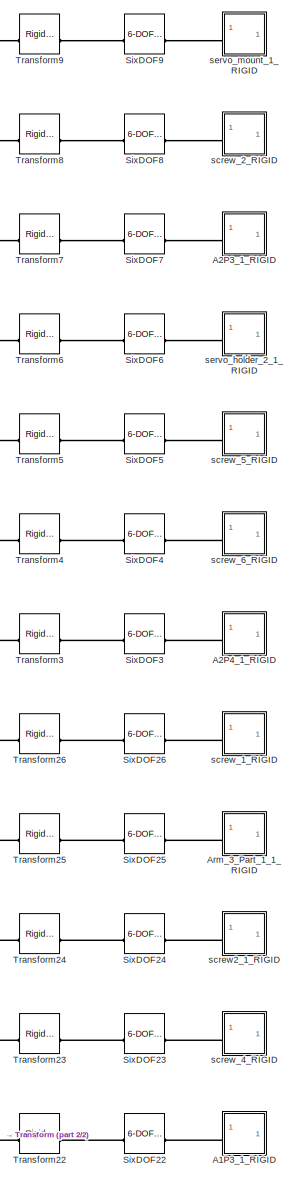
[diagram: root canvas - part 1/2, top right region]
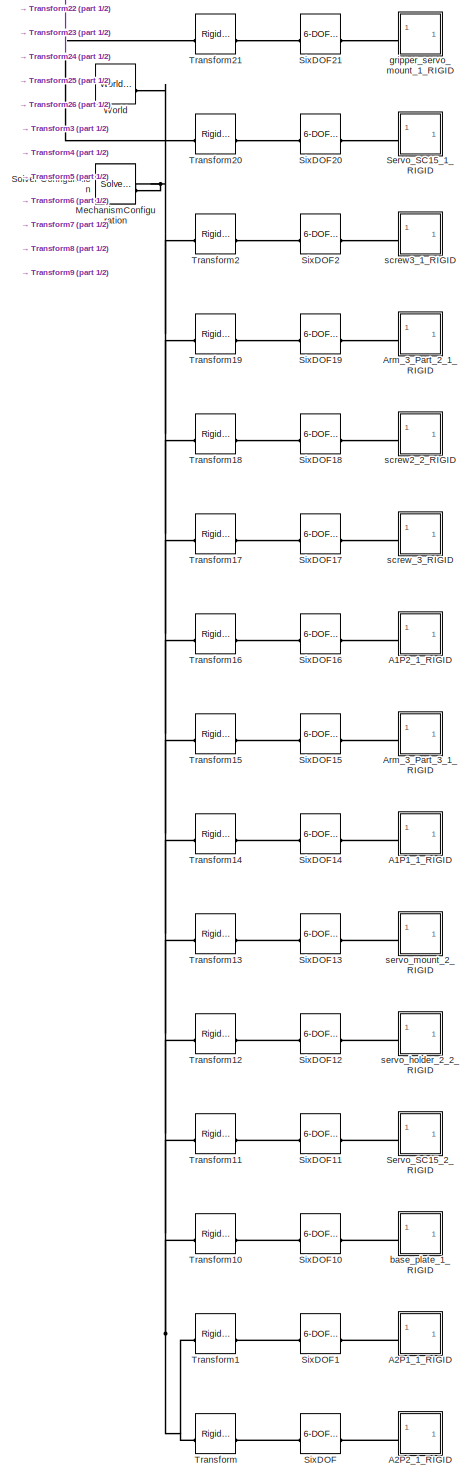
[diagram: root canvas - part 2/2, full width, bottom band]
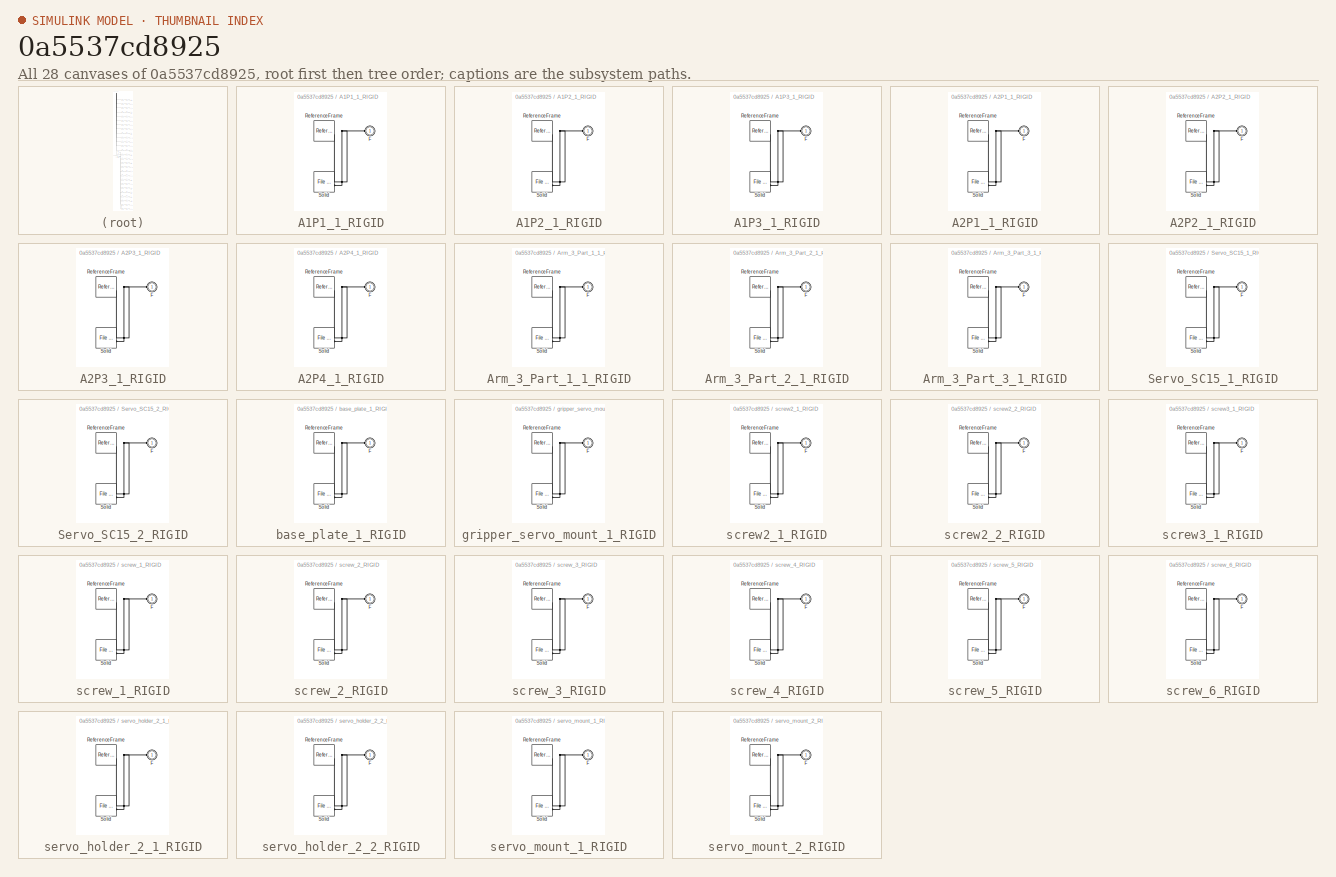
[diagram: thumbnail index - all 28 canvases of the model, root first then tree order]
MODEL slx_0a5537cd8925
KIND model
CONFIG AbsTol = auto
CONFIG EnableMultiTasking = off
CONFIG FixedStep = auto
CONFIG MaxStep = auto
CONFIG MinStep = auto
CONFIG RelTol = 1e-3
CONFIG SampleTimeConstraint = Unconstrained
CONFIG SolverName = VariableStepAuto
CONFIG StartTime = 0.0
CONFIG StopTime = 10.0
WORKSPACE source: external: MATLAB File  (data not in archive)
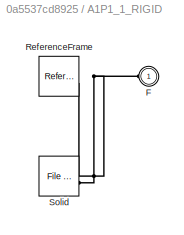
BLOCK [SubSystem] A1P1_1_RIGID
BLOCK [PMIOPort] A1P1_1_RIGID/F
  Side = Left
BLOCK [Reference] A1P1_1_RIGID/ReferenceFrame  REF=sm_lib/Frames and
Transforms/Reference
Frame
  SourceBlock = sm_lib/Frames and\nTransforms/Reference\nFrame
  SourceType = Reference\nFrame
BLOCK [Reference] A1P1_1_RIGID/Solid  REF=sm_lib/Body Elements/File Solid
  SourceBlock = sm_lib/Body Elements/File Solid
  SourceType = File Solid
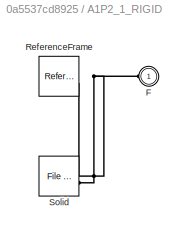
BLOCK [SubSystem] A1P2_1_RIGID
BLOCK [PMIOPort] A1P2_1_RIGID/F
  Side = Left
BLOCK [Reference] A1P2_1_RIGID/ReferenceFrame  REF=sm_lib/Frames and
Transforms/Reference
Frame
  SourceBlock = sm_lib/Frames and\nTransforms/Reference\nFrame
  SourceType = Reference\nFrame
BLOCK [Reference] A1P2_1_RIGID/Solid  REF=sm_lib/Body Elements/File Solid
  SourceBlock = sm_lib/Body Elements/File Solid
  SourceType = File Solid
BLOCK [SubSystem] A1P3_1_RIGID
BLOCK [PMIOPort] A1P3_1_RIGID/F
  Side = Left
BLOCK [Reference] A1P3_1_RIGID/ReferenceFrame  REF=sm_lib/Frames and
Transforms/Reference
Frame
  SourceBlock = sm_lib/Frames and\nTransforms/Reference\nFrame
  SourceType = Reference\nFrame
BLOCK [Reference] A1P3_1_RIGID/Solid  REF=sm_lib/Body Elements/File Solid
  SourceBlock = sm_lib/Body Elements/File Solid
  SourceType = File Solid
BLOCK [SubSystem] A2P1_1_RIGID
BLOCK [PMIOPort] A2P1_1_RIGID/F
  Side = Left
BLOCK [Reference] A2P1_1_RIGID/ReferenceFrame  REF=sm_lib/Frames and
Transforms/Reference
Frame
  SourceBlock = sm_lib/Frames and\nTransforms/Reference\nFrame
  SourceType = Reference\nFrame
BLOCK [Reference] A2P1_1_RIGID/Solid  REF=sm_lib/Body Elements/File Solid
  SourceBlock = sm_lib/Body Elements/File Solid
  SourceType = File Solid
BLOCK [SubSystem] A2P2_1_RIGID
BLOCK [PMIOPort] A2P2_1_RIGID/F
  Side = Left
BLOCK [Reference] A2P2_1_RIGID/ReferenceFrame  REF=sm_lib/Frames and
Transforms/Reference
Frame
  SourceBlock = sm_lib/Frames and\nTransforms/Reference\nFrame
  SourceType = Reference\nFrame
BLOCK [Reference] A2P2_1_RIGID/Solid  REF=sm_lib/Body Elements/File Solid
  SourceBlock = sm_lib/Body Elements/File Solid
  SourceType = File Solid
BLOCK [SubSystem] A2P3_1_RIGID
BLOCK [PMIOPort] A2P3_1_RIGID/F
  Side = Left
BLOCK [Reference] A2P3_1_RIGID/ReferenceFrame  REF=sm_lib/Frames and
Transforms/Reference
Frame
  SourceBlock = sm_lib/Frames and\nTransforms/Reference\nFrame
  SourceType = Reference\nFrame
BLOCK [Reference] A2P3_1_RIGID/Solid  REF=sm_lib/Body Elements/File Solid
  SourceBlock = sm_lib/Body Elements/File Solid
  SourceType = File Solid
BLOCK [SubSystem] A2P4_1_RIGID
BLOCK [PMIOPort] A2P4_1_RIGID/F
  Side = Left
BLOCK [Reference] A2P4_1_RIGID/ReferenceFrame  REF=sm_lib/Frames and
Transforms/Reference
Frame
  SourceBlock = sm_lib/Frames and\nTransforms/Reference\nFrame
  SourceType = Reference\nFrame
BLOCK [Reference] A2P4_1_RIGID/Solid  REF=sm_lib/Body Elements/File Solid
  SourceBlock = sm_lib/Body Elements/File Solid
  SourceType = File Solid
BLOCK [SubSystem] Arm_3_Part_1_1_RIGID
BLOCK [PMIOPort] Arm_3_Part_1_1_RIGID/F
  Side = Left
BLOCK [Reference] Arm_3_Part_1_1_RIGID/ReferenceFrame  REF=sm_lib/Frames and
Transforms/Reference
Frame
  SourceBlock = sm_lib/Frames and\nTransforms/Reference\nFrame
  SourceType = Reference\nFrame
BLOCK [Reference] Arm_3_Part_1_1_RIGID/Solid  REF=sm_lib/Body Elements/File Solid
  SourceBlock = sm_lib/Body Elements/File Solid
  SourceType = File Solid
BLOCK [SubSystem] Arm_3_Part_2_1_RIGID
BLOCK [PMIOPort] Arm_3_Part_2_1_RIGID/F
  Side = Left
BLOCK [Reference] Arm_3_Part_2_1_RIGID/ReferenceFrame  REF=sm_lib/Frames and
Transforms/Reference
Frame
  SourceBlock = sm_lib/Frames and\nTransforms/Reference\nFrame
  SourceType = Reference\nFrame
BLOCK [Reference] Arm_3_Part_2_1_RIGID/Solid  REF=sm_lib/Body Elements/File Solid
  SourceBlock = sm_lib/Body Elements/File Solid
  SourceType = File Solid
BLOCK [SubSystem] Arm_3_Part_3_1_RIGID
BLOCK [PMIOPort] Arm_3_Part_3_1_RIGID/F
  Side = Left
BLOCK [Reference] Arm_3_Part_3_1_RIGID/ReferenceFrame  REF=sm_lib/Frames and
Transforms/Reference
Frame
  SourceBlock = sm_lib/Frames and\nTransforms/Reference\nFrame
  SourceType = Reference\nFrame
BLOCK [Reference] Arm_3_Part_3_1_RIGID/Solid  REF=sm_lib/Body Elements/File Solid
  SourceBlock = sm_lib/Body Elements/File Solid
  SourceType = File Solid
BLOCK [Reference] MechanismConfiguration  REF=sm_lib/Utilities/Mechanism
Configuration
  SourceBlock = sm_lib/Utilities/Mechanism\nConfiguration
  SourceType = Mechanism\nConfiguration
BLOCK [SubSystem] Servo_SC15_1_RIGID
BLOCK [PMIOPort] Servo_SC15_1_RIGID/F
  Side = Left
BLOCK [Reference] Servo_SC15_1_RIGID/ReferenceFrame  REF=sm_lib/Frames and
Transforms/Reference
Frame
  SourceBlock = sm_lib/Frames and\nTransforms/Reference\nFrame
  SourceType = Reference\nFrame
BLOCK [Reference] Servo_SC15_1_RIGID/Solid  REF=sm_lib/Body Elements/File Solid
  SourceBlock = sm_lib/Body Elements/File Solid
  SourceType = File Solid
BLOCK [SubSystem] Servo_SC15_2_RIGID
BLOCK [PMIOPort] Servo_SC15_2_RIGID/F
  Side = Left
BLOCK [Reference] Servo_SC15_2_RIGID/ReferenceFrame  REF=sm_lib/Frames and
Transforms/Reference
Frame
  SourceBlock = sm_lib/Frames and\nTransforms/Reference\nFrame
  SourceType = Reference\nFrame
BLOCK [Reference] Servo_SC15_2_RIGID/Solid  REF=sm_lib/Body Elements/File Solid
  SourceBlock = sm_lib/Body Elements/File Solid
  SourceType = File Solid
BLOCK [Reference] SixDOF  REF=sm_lib/Joints/6-DOF Joint
  SourceBlock = sm_lib/Joints/6-DOF Joint
  SourceType = 6-DOF Joint
BLOCK [Reference] SixDOF1  REF=sm_lib/Joints/6-DOF Joint
  SourceBlock = sm_lib/Joints/6-DOF Joint
  SourceType = 6-DOF Joint
BLOCK [Reference] SixDOF10  REF=sm_lib/Joints/6-DOF Joint
  SourceBlock = sm_lib/Joints/6-DOF Joint
  SourceType = 6-DOF Joint
BLOCK [Reference] SixDOF11  REF=sm_lib/Joints/6-DOF Joint
  SourceBlock = sm_lib/Joints/6-DOF Joint
  SourceType = 6-DOF Joint
BLOCK [Reference] SixDOF12  REF=sm_lib/Joints/6-DOF Joint
  SourceBlock = sm_lib/Joints/6-DOF Joint
  SourceType = 6-DOF Joint
BLOCK [Reference] SixDOF13  REF=sm_lib/Joints/6-DOF Joint
  SourceBlock = sm_lib/Joints/6-DOF Joint
  SourceType = 6-DOF Joint
BLOCK [Reference] SixDOF14  REF=sm_lib/Joints/6-DOF Joint
  SourceBlock = sm_lib/Joints/6-DOF Joint
  SourceType = 6-DOF Joint
BLOCK [Reference] SixDOF15  REF=sm_lib/Joints/6-DOF Joint
  SourceBlock = sm_lib/Joints/6-DOF Joint
  SourceType = 6-DOF Joint
BLOCK [Reference] SixDOF16  REF=sm_lib/Joints/6-DOF Joint
  SourceBlock = sm_lib/Joints/6-DOF Joint
  SourceType = 6-DOF Joint
BLOCK [Reference] SixDOF17  REF=sm_lib/Joints/6-DOF Joint
  SourceBlock = sm_lib/Joints/6-DOF Joint
  SourceType = 6-DOF Joint
BLOCK [Reference] SixDOF18  REF=sm_lib/Joints/6-DOF Joint
  SourceBlock = sm_lib/Joints/6-DOF Joint
  SourceType = 6-DOF Joint
BLOCK [Reference] SixDOF19  REF=sm_lib/Joints/6-DOF Joint
  SourceBlock = sm_lib/Joints/6-DOF Joint
  SourceType = 6-DOF Joint
BLOCK [Reference] SixDOF2  REF=sm_lib/Joints/6-DOF Joint
  SourceBlock = sm_lib/Joints/6-DOF Joint
  SourceType = 6-DOF Joint
BLOCK [Reference] SixDOF20  REF=sm_lib/Joints/6-DOF Joint
  SourceBlock = sm_lib/Joints/6-DOF Joint
  SourceType = 6-DOF Joint
BLOCK [Reference] SixDOF21  REF=sm_lib/Joints/6-DOF Joint
  SourceBlock = sm_lib/Joints/6-DOF Joint
  SourceType = 6-DOF Joint
BLOCK [Reference] SixDOF22  REF=sm_lib/Joints/6-DOF Joint
  SourceBlock = sm_lib/Joints/6-DOF Joint
  SourceType = 6-DOF Joint
BLOCK [Reference] SixDOF23  REF=sm_lib/Joints/6-DOF Joint
  SourceBlock = sm_lib/Joints/6-DOF Joint
  SourceType = 6-DOF Joint
BLOCK [Reference] SixDOF24  REF=sm_lib/Joints/6-DOF Joint
  SourceBlock = sm_lib/Joints/6-DOF Joint
  SourceType = 6-DOF Joint
BLOCK [Reference] SixDOF25  REF=sm_lib/Joints/6-DOF Joint
  SourceBlock = sm_lib/Joints/6-DOF Joint
  SourceType = 6-DOF Joint
BLOCK [Reference] SixDOF26  REF=sm_lib/Joints/6-DOF Joint
  SourceBlock = sm_lib/Joints/6-DOF Joint
  SourceType = 6-DOF Joint
BLOCK [Reference] SixDOF3  REF=sm_lib/Joints/6-DOF Joint
  SourceBlock = sm_lib/Joints/6-DOF Joint
  SourceType = 6-DOF Joint
BLOCK [Reference] SixDOF4  REF=sm_lib/Joints/6-DOF Joint
  SourceBlock = sm_lib/Joints/6-DOF Joint
  SourceType = 6-DOF Joint
BLOCK [Reference] SixDOF5  REF=sm_lib/Joints/6-DOF Joint
  SourceBlock = sm_lib/Joints/6-DOF Joint
  SourceType = 6-DOF Joint
BLOCK [Reference] SixDOF6  REF=sm_lib/Joints/6-DOF Joint
  SourceBlock = sm_lib/Joints/6-DOF Joint
  SourceType = 6-DOF Joint
BLOCK [Reference] SixDOF7  REF=sm_lib/Joints/6-DOF Joint
  SourceBlock = sm_lib/Joints/6-DOF Joint
  SourceType = 6-DOF Joint
BLOCK [Reference] SixDOF8  REF=sm_lib/Joints/6-DOF Joint
  SourceBlock = sm_lib/Joints/6-DOF Joint
  SourceType = 6-DOF Joint
BLOCK [Reference] SixDOF9  REF=sm_lib/Joints/6-DOF Joint
  SourceBlock = sm_lib/Joints/6-DOF Joint
  SourceType = 6-DOF Joint
BLOCK [Reference] Solver Configuration  REF=nesl_utility/Solver
Configuration
  SourceBlock = nesl_utility/Solver\nConfiguration
  SourceType = Solver\nConfiguration
BLOCK [Reference] Transform  REF=sm_lib/Frames and
Transforms/Rigid
Transform
  SourceBlock = sm_lib/Frames and\nTransforms/Rigid\nTransform
  SourceType = Rigid\nTransform
BLOCK [Reference] Transform1  REF=sm_lib/Frames and
Transforms/Rigid
Transform
  SourceBlock = sm_lib/Frames and\nTransforms/Rigid\nTransform
  SourceType = Rigid\nTransform
BLOCK [Reference] Transform10  REF=sm_lib/Frames and
Transforms/Rigid
Transform
  SourceBlock = sm_lib/Frames and\nTransforms/Rigid\nTransform
  SourceType = Rigid\nTransform
BLOCK [Reference] Transform11  REF=sm_lib/Frames and
Transforms/Rigid
Transform
  SourceBlock = sm_lib/Frames and\nTransforms/Rigid\nTransform
  SourceType = Rigid\nTransform
BLOCK [Reference] Transform12  REF=sm_lib/Frames and
Transforms/Rigid
Transform
  SourceBlock = sm_lib/Frames and\nTransforms/Rigid\nTransform
  SourceType = Rigid\nTransform
BLOCK [Reference] Transform13  REF=sm_lib/Frames and
Transforms/Rigid
Transform
  SourceBlock = sm_lib/Frames and\nTransforms/Rigid\nTransform
  SourceType = Rigid\nTransform
BLOCK [Reference] Transform14  REF=sm_lib/Frames and
Transforms/Rigid
Transform
  SourceBlock = sm_lib/Frames and\nTransforms/Rigid\nTransform
  SourceType = Rigid\nTransform
BLOCK [Reference] Transform15  REF=sm_lib/Frames and
Transforms/Rigid
Transform
  SourceBlock = sm_lib/Frames and\nTransforms/Rigid\nTransform
  SourceType = Rigid\nTransform
BLOCK [Reference] Transform16  REF=sm_lib/Frames and
Transforms/Rigid
Transform
  SourceBlock = sm_lib/Frames and\nTransforms/Rigid\nTransform
  SourceType = Rigid\nTransform
BLOCK [Reference] Transform17  REF=sm_lib/Frames and
Transforms/Rigid
Transform
  SourceBlock = sm_lib/Frames and\nTransforms/Rigid\nTransform
  SourceType = Rigid\nTransform
BLOCK [Reference] Transform18  REF=sm_lib/Frames and
Transforms/Rigid
Transform
  SourceBlock = sm_lib/Frames and\nTransforms/Rigid\nTransform
  SourceType = Rigid\nTransform
BLOCK [Reference] Transform19  REF=sm_lib/Frames and
Transforms/Rigid
Transform
  SourceBlock = sm_lib/Frames and\nTransforms/Rigid\nTransform
  SourceType = Rigid\nTransform
BLOCK [Reference] Transform2  REF=sm_lib/Frames and
Transforms/Rigid
Transform
  SourceBlock = sm_lib/Frames and\nTransforms/Rigid\nTransform
  SourceType = Rigid\nTransform
BLOCK [Reference] Transform20  REF=sm_lib/Frames and
Transforms/Rigid
Transform
  SourceBlock = sm_lib/Frames and\nTransforms/Rigid\nTransform
  SourceType = Rigid\nTransform
BLOCK [Reference] Transform21  REF=sm_lib/Frames and
Transforms/Rigid
Transform
  SourceBlock = sm_lib/Frames and\nTransforms/Rigid\nTransform
  SourceType = Rigid\nTransform
BLOCK [Reference] Transform22  REF=sm_lib/Frames and
Transforms/Rigid
Transform
  SourceBlock = sm_lib/Frames and\nTransforms/Rigid\nTransform
  SourceType = Rigid\nTransform
BLOCK [Reference] Transform23  REF=sm_lib/Frames and
Transforms/Rigid
Transform
  SourceBlock = sm_lib/Frames and\nTransforms/Rigid\nTransform
  SourceType = Rigid\nTransform
BLOCK [Reference] Transform24  REF=sm_lib/Frames and
Transforms/Rigid
Transform
  SourceBlock = sm_lib/Frames and\nTransforms/Rigid\nTransform
  SourceType = Rigid\nTransform
BLOCK [Reference] Transform25  REF=sm_lib/Frames and
Transforms/Rigid
Transform
  SourceBlock = sm_lib/Frames and\nTransforms/Rigid\nTransform
  SourceType = Rigid\nTransform
BLOCK [Reference] Transform26  REF=sm_lib/Frames and
Transforms/Rigid
Transform
  SourceBlock = sm_lib/Frames and\nTransforms/Rigid\nTransform
  SourceType = Rigid\nTransform
BLOCK [Reference] Transform3  REF=sm_lib/Frames and
Transforms/Rigid
Transform
  SourceBlock = sm_lib/Frames and\nTransforms/Rigid\nTransform
  SourceType = Rigid\nTransform
BLOCK [Reference] Transform4  REF=sm_lib/Frames and
Transforms/Rigid
Transform
  SourceBlock = sm_lib/Frames and\nTransforms/Rigid\nTransform
  SourceType = Rigid\nTransform
BLOCK [Reference] Transform5  REF=sm_lib/Frames and
Transforms/Rigid
Transform
  SourceBlock = sm_lib/Frames and\nTransforms/Rigid\nTransform
  SourceType = Rigid\nTransform
BLOCK [Reference] Transform6  REF=sm_lib/Frames and
Transforms/Rigid
Transform
  SourceBlock = sm_lib/Frames and\nTransforms/Rigid\nTransform
  SourceType = Rigid\nTransform
BLOCK [Reference] Transform7  REF=sm_lib/Frames and
Transforms/Rigid
Transform
  SourceBlock = sm_lib/Frames and\nTransforms/Rigid\nTransform
  SourceType = Rigid\nTransform
BLOCK [Reference] Transform8  REF=sm_lib/Frames and
Transforms/Rigid
Transform
  SourceBlock = sm_lib/Frames and\nTransforms/Rigid\nTransform
  SourceType = Rigid\nTransform
BLOCK [Reference] Transform9  REF=sm_lib/Frames and
Transforms/Rigid
Transform
  SourceBlock = sm_lib/Frames and\nTransforms/Rigid\nTransform
  SourceType = Rigid\nTransform
BLOCK [Reference] World  REF=sm_lib/Frames and
Transforms/World Frame
  SourceBlock = sm_lib/Frames and\nTransforms/World Frame
  SourceType = World Frame
BLOCK [SubSystem] base_plate_1_RIGID
BLOCK [PMIOPort] base_plate_1_RIGID/F
  Side = Left
BLOCK [Reference] base_plate_1_RIGID/ReferenceFrame  REF=sm_lib/Frames and
Transforms/Reference
Frame
  SourceBlock = sm_lib/Frames and\nTransforms/Reference\nFrame
  SourceType = Reference\nFrame
BLOCK [Reference] base_plate_1_RIGID/Solid  REF=sm_lib/Body Elements/File Solid
  SourceBlock = sm_lib/Body Elements/File Solid
  SourceType = File Solid
BLOCK [SubSystem] gripper_servo_mount_1_RIGID
BLOCK [PMIOPort] gripper_servo_mount_1_RIGID/F
  Side = Left
BLOCK [Reference] gripper_servo_mount_1_RIGID/ReferenceFrame  REF=sm_lib/Frames and
Transforms/Reference
Frame
  SourceBlock = sm_lib/Frames and\nTransforms/Reference\nFrame
  SourceType = Reference\nFrame
BLOCK [Reference] gripper_servo_mount_1_RIGID/Solid  REF=sm_lib/Body Elements/File Solid
  SourceBlock = sm_lib/Body Elements/File Solid
  SourceType = File Solid
BLOCK [SubSystem] screw2_1_RIGID
BLOCK [PMIOPort] screw2_1_RIGID/F
  Side = Left
BLOCK [Reference] screw2_1_RIGID/ReferenceFrame  REF=sm_lib/Frames and
Transforms/Reference
Frame
  SourceBlock = sm_lib/Frames and\nTransforms/Reference\nFrame
  SourceType = Reference\nFrame
BLOCK [Reference] screw2_1_RIGID/Solid  REF=sm_lib/Body Elements/File Solid
  SourceBlock = sm_lib/Body Elements/File Solid
  SourceType = File Solid
BLOCK [SubSystem] screw2_2_RIGID
BLOCK [PMIOPort] screw2_2_RIGID/F
  Side = Left
BLOCK [Reference] screw2_2_RIGID/ReferenceFrame  REF=sm_lib/Frames and
Transforms/Reference
Frame
  SourceBlock = sm_lib/Frames and\nTransforms/Reference\nFrame
  SourceType = Reference\nFrame
BLOCK [Reference] screw2_2_RIGID/Solid  REF=sm_lib/Body Elements/File Solid
  SourceBlock = sm_lib/Body Elements/File Solid
  SourceType = File Solid
BLOCK [SubSystem] screw3_1_RIGID
BLOCK [PMIOPort] screw3_1_RIGID/F
  Side = Left
BLOCK [Reference] screw3_1_RIGID/ReferenceFrame  REF=sm_lib/Frames and
Transforms/Reference
Frame
  SourceBlock = sm_lib/Frames and\nTransforms/Reference\nFrame
  SourceType = Reference\nFrame
BLOCK [Reference] screw3_1_RIGID/Solid  REF=sm_lib/Body Elements/File Solid
  SourceBlock = sm_lib/Body Elements/File Solid
  SourceType = File Solid
BLOCK [SubSystem] screw_1_RIGID
BLOCK [PMIOPort] screw_1_RIGID/F
  Side = Left
BLOCK [Reference] screw_1_RIGID/ReferenceFrame  REF=sm_lib/Frames and
Transforms/Reference
Frame
  SourceBlock = sm_lib/Frames and\nTransforms/Reference\nFrame
  SourceType = Reference\nFrame
BLOCK [Reference] screw_1_RIGID/Solid  REF=sm_lib/Body Elements/File Solid
  SourceBlock = sm_lib/Body Elements/File Solid
  SourceType = File Solid
BLOCK [SubSystem] screw_2_RIGID
BLOCK [PMIOPort] screw_2_RIGID/F
  Side = Left
BLOCK [Reference] screw_2_RIGID/ReferenceFrame  REF=sm_lib/Frames and
Transforms/Reference
Frame
  SourceBlock = sm_lib/Frames and\nTransforms/Reference\nFrame
  SourceType = Reference\nFrame
BLOCK [Reference] screw_2_RIGID/Solid  REF=sm_lib/Body Elements/File Solid
  SourceBlock = sm_lib/Body Elements/File Solid
  SourceType = File Solid
BLOCK [SubSystem] screw_3_RIGID
BLOCK [PMIOPort] screw_3_RIGID/F
  Side = Left
BLOCK [Reference] screw_3_RIGID/ReferenceFrame  REF=sm_lib/Frames and
Transforms/Reference
Frame
  SourceBlock = sm_lib/Frames and\nTransforms/Reference\nFrame
  SourceType = Reference\nFrame
BLOCK [Reference] screw_3_RIGID/Solid  REF=sm_lib/Body Elements/File Solid
  SourceBlock = sm_lib/Body Elements/File Solid
  SourceType = File Solid
BLOCK [SubSystem] screw_4_RIGID
BLOCK [PMIOPort] screw_4_RIGID/F
  Side = Left
BLOCK [Reference] screw_4_RIGID/ReferenceFrame  REF=sm_lib/Frames and
Transforms/Reference
Frame
  SourceBlock = sm_lib/Frames and\nTransforms/Reference\nFrame
  SourceType = Reference\nFrame
BLOCK [Reference] screw_4_RIGID/Solid  REF=sm_lib/Body Elements/File Solid
  SourceBlock = sm_lib/Body Elements/File Solid
  SourceType = File Solid
BLOCK [SubSystem] screw_5_RIGID
BLOCK [PMIOPort] screw_5_RIGID/F
  Side = Left
BLOCK [Reference] screw_5_RIGID/ReferenceFrame  REF=sm_lib/Frames and
Transforms/Reference
Frame
  SourceBlock = sm_lib/Frames and\nTransforms/Reference\nFrame
  SourceType = Reference\nFrame
BLOCK [Reference] screw_5_RIGID/Solid  REF=sm_lib/Body Elements/File Solid
  SourceBlock = sm_lib/Body Elements/File Solid
  SourceType = File Solid
BLOCK [SubSystem] screw_6_RIGID
BLOCK [PMIOPort] screw_6_RIGID/F
  Side = Left
BLOCK [Reference] screw_6_RIGID/ReferenceFrame  REF=sm_lib/Frames and
Transforms/Reference
Frame
  SourceBlock = sm_lib/Frames and\nTransforms/Reference\nFrame
  SourceType = Reference\nFrame
BLOCK [Reference] screw_6_RIGID/Solid  REF=sm_lib/Body Elements/File Solid
  SourceBlock = sm_lib/Body Elements/File Solid
  SourceType = File Solid
BLOCK [SubSystem] servo_holder_2_1_RIGID
BLOCK [PMIOPort] servo_holder_2_1_RIGID/F
  Side = Left
BLOCK [Reference] servo_holder_2_1_RIGID/ReferenceFrame  REF=sm_lib/Frames and
Transforms/Reference
Frame
  SourceBlock = sm_lib/Frames and\nTransforms/Reference\nFrame
  SourceType = Reference\nFrame
BLOCK [Reference] servo_holder_2_1_RIGID/Solid  REF=sm_lib/Body Elements/File Solid
  SourceBlock = sm_lib/Body Elements/File Solid
  SourceType = File Solid
BLOCK [SubSystem] servo_holder_2_2_RIGID
BLOCK [PMIOPort] servo_holder_2_2_RIGID/F
  Side = Left
BLOCK [Reference] servo_holder_2_2_RIGID/ReferenceFrame  REF=sm_lib/Frames and
Transforms/Reference
Frame
  SourceBlock = sm_lib/Frames and\nTransforms/Reference\nFrame
  SourceType = Reference\nFrame
BLOCK [Reference] servo_holder_2_2_RIGID/Solid  REF=sm_lib/Body Elements/File Solid
  SourceBlock = sm_lib/Body Elements/File Solid
  SourceType = File Solid
BLOCK [SubSystem] servo_mount_1_RIGID
BLOCK [PMIOPort] servo_mount_1_RIGID/F
  Side = Left
BLOCK [Reference] servo_mount_1_RIGID/ReferenceFrame  REF=sm_lib/Frames and
Transforms/Reference
Frame
  SourceBlock = sm_lib/Frames and\nTransforms/Reference\nFrame
  SourceType = Reference\nFrame
BLOCK [Reference] servo_mount_1_RIGID/Solid  REF=sm_lib/Body Elements/File Solid
  SourceBlock = sm_lib/Body Elements/File Solid
  SourceType = File Solid
BLOCK [SubSystem] servo_mount_2_RIGID
BLOCK [PMIOPort] servo_mount_2_RIGID/F
  Side = Left
BLOCK [Reference] servo_mount_2_RIGID/ReferenceFrame  REF=sm_lib/Frames and
Transforms/Reference
Frame
  SourceBlock = sm_lib/Frames and\nTransforms/Reference\nFrame
  SourceType = Reference\nFrame
BLOCK [Reference] servo_mount_2_RIGID/Solid  REF=sm_lib/Body Elements/File Solid
  SourceBlock = sm_lib/Body Elements/File Solid
  SourceType = File Solid
PNET net1: A1P1_1_RIGID/F:RConn1 -- A1P1_1_RIGID/ReferenceFrame:RConn1 -- A1P1_1_RIGID/Solid:RConn1
PLINE A1P1_1_RIGID:LConn1 -- SixDOF14:RConn1
PNET net2: A1P2_1_RIGID/F:RConn1 -- A1P2_1_RIGID/ReferenceFrame:RConn1 -- A1P2_1_RIGID/Solid:RConn1
PLINE A1P2_1_RIGID:LConn1 -- SixDOF16:RConn1
PNET net3: A1P3_1_RIGID/F:RConn1 -- A1P3_1_RIGID/ReferenceFrame:RConn1 -- A1P3_1_RIGID/Solid:RConn1
PLINE A1P3_1_RIGID:LConn1 -- SixDOF22:RConn1
PNET net4: A2P1_1_RIGID/F:RConn1 -- A2P1_1_RIGID/ReferenceFrame:RConn1 -- A2P1_1_RIGID/Solid:RConn1
PLINE A2P1_1_RIGID:LConn1 -- SixDOF1:RConn1
PNET net5: A2P2_1_RIGID/F:RConn1 -- A2P2_1_RIGID/ReferenceFrame:RConn1 -- A2P2_1_RIGID/Solid:RConn1
PLINE A2P2_1_RIGID:LConn1 -- SixDOF:RConn1
PNET net6: A2P3_1_RIGID/F:RConn1 -- A2P3_1_RIGID/ReferenceFrame:RConn1 -- A2P3_1_RIGID/Solid:RConn1
PLINE A2P3_1_RIGID:LConn1 -- SixDOF7:RConn1
PNET net7: A2P4_1_RIGID/F:RConn1 -- A2P4_1_RIGID/ReferenceFrame:RConn1 -- A2P4_1_RIGID/Solid:RConn1
PLINE A2P4_1_RIGID:LConn1 -- SixDOF3:RConn1
PNET net8: Arm_3_Part_1_1_RIGID/F:RConn1 -- Arm_3_Part_1_1_RIGID/ReferenceFrame:RConn1 -- Arm_3_Part_1_1_RIGID/Solid:RConn1
PLINE Arm_3_Part_1_1_RIGID:LConn1 -- SixDOF25:RConn1
PNET net9: Arm_3_Part_2_1_RIGID/F:RConn1 -- Arm_3_Part_2_1_RIGID/ReferenceFrame:RConn1 -- Arm_3_Part_2_1_RIGID/Solid:RConn1
PLINE Arm_3_Part_2_1_RIGID:LConn1 -- SixDOF19:RConn1
PNET net10: Arm_3_Part_3_1_RIGID/F:RConn1 -- Arm_3_Part_3_1_RIGID/ReferenceFrame:RConn1 -- Arm_3_Part_3_1_RIGID/Solid:RConn1
PLINE Arm_3_Part_3_1_RIGID:LConn1 -- SixDOF15:RConn1
PNET net11: MechanismConfiguration:RConn1 -- Solver Configuration:RConn1 -- Transform10:LConn1 -- Transform11:LConn1 -- Transform12:LConn1 -- Transform13:LConn1 -- Transform14:LConn1 -- Transform15:LConn1 -- Transform16:LConn1 -- Transform17:LConn1 -- Transform18:LConn1 -- Transform19:LConn1 -- Transform1:LConn1 -- Transform20:LConn1 -- Transform21:LConn1 -- Transform22:LConn1 -- Transform23:LConn1 -- Transform24:LConn1 -- Transform25:LConn1 -- Transform26:LConn1 -- Transform2:LConn1 -- Transform3:LConn1 -- Transform4:LConn1 -- Transform5:LConn1 -- Transform6:LConn1 -- Transform7:LConn1 -- Transform8:LConn1 -- Transform9:LConn1 -- Transform:LConn1 -- World:RConn1
PNET net12: Servo_SC15_1_RIGID/F:RConn1 -- Servo_SC15_1_RIGID/ReferenceFrame:RConn1 -- Servo_SC15_1_RIGID/Solid:RConn1
PLINE Servo_SC15_1_RIGID:LConn1 -- SixDOF20:RConn1
PNET net13: Servo_SC15_2_RIGID/F:RConn1 -- Servo_SC15_2_RIGID/ReferenceFrame:RConn1 -- Servo_SC15_2_RIGID/Solid:RConn1
PLINE Servo_SC15_2_RIGID:LConn1 -- SixDOF11:RConn1
PLINE SixDOF10:LConn1 -- Transform10:RConn1
PLINE SixDOF10:RConn1 -- base_plate_1_RIGID:LConn1
PLINE SixDOF11:LConn1 -- Transform11:RConn1
PLINE SixDOF12:LConn1 -- Transform12:RConn1
PLINE SixDOF12:RConn1 -- servo_holder_2_2_RIGID:LConn1
PLINE SixDOF13:LConn1 -- Transform13:RConn1
PLINE SixDOF13:RConn1 -- servo_mount_2_RIGID:LConn1
PLINE SixDOF14:LConn1 -- Transform14:RConn1
PLINE SixDOF15:LConn1 -- Transform15:RConn1
PLINE SixDOF16:LConn1 -- Transform16:RConn1
PLINE SixDOF17:LConn1 -- Transform17:RConn1
PLINE SixDOF17:RConn1 -- screw_3_RIGID:LConn1
PLINE SixDOF18:LConn1 -- Transform18:RConn1
PLINE SixDOF18:RConn1 -- screw2_2_RIGID:LConn1
PLINE SixDOF19:LConn1 -- Transform19:RConn1
PLINE SixDOF1:LConn1 -- Transform1:RConn1
PLINE SixDOF20:LConn1 -- Transform20:RConn1
PLINE SixDOF21:LConn1 -- Transform21:RConn1
PLINE SixDOF21:RConn1 -- gripper_servo_mount_1_RIGID:LConn1
PLINE SixDOF22:LConn1 -- Transform22:RConn1
PLINE SixDOF23:LConn1 -- Transform23:RConn1
PLINE SixDOF23:RConn1 -- screw_4_RIGID:LConn1
PLINE SixDOF24:LConn1 -- Transform24:RConn1
PLINE SixDOF24:RConn1 -- screw2_1_RIGID:LConn1
PLINE SixDOF25:LConn1 -- Transform25:RConn1
PLINE SixDOF26:LConn1 -- Transform26:RConn1
PLINE SixDOF26:RConn1 -- screw_1_RIGID:LConn1
PLINE SixDOF2:LConn1 -- Transform2:RConn1
PLINE SixDOF2:RConn1 -- screw3_1_RIGID:LConn1
PLINE SixDOF3:LConn1 -- Transform3:RConn1
PLINE SixDOF4:LConn1 -- Transform4:RConn1
PLINE SixDOF4:RConn1 -- screw_6_RIGID:LConn1
PLINE SixDOF5:LConn1 -- Transform5:RConn1
PLINE SixDOF5:RConn1 -- screw_5_RIGID:LConn1
PLINE SixDOF6:LConn1 -- Transform6:RConn1
PLINE SixDOF6:RConn1 -- servo_holder_2_1_RIGID:LConn1
PLINE SixDOF7:LConn1 -- Transform7:RConn1
PLINE SixDOF8:LConn1 -- Transform8:RConn1
PLINE SixDOF8:RConn1 -- screw_2_RIGID:LConn1
PLINE SixDOF9:LConn1 -- Transform9:RConn1
PLINE SixDOF9:RConn1 -- servo_mount_1_RIGID:LConn1
PLINE SixDOF:LConn1 -- Transform:RConn1
PNET net14: base_plate_1_RIGID/F:RConn1 -- base_plate_1_RIGID/ReferenceFrame:RConn1 -- base_plate_1_RIGID/Solid:RConn1
PNET net15: gripper_servo_mount_1_RIGID/F:RConn1 -- gripper_servo_mount_1_RIGID/ReferenceFrame:RConn1 -- gripper_servo_mount_1_RIGID/Solid:RConn1
PNET net16: screw2_1_RIGID/F:RConn1 -- screw2_1_RIGID/ReferenceFrame:RConn1 -- screw2_1_RIGID/Solid:RConn1
PNET net17: screw2_2_RIGID/F:RConn1 -- screw2_2_RIGID/ReferenceFrame:RConn1 -- screw2_2_RIGID/Solid:RConn1
PNET net18: screw3_1_RIGID/F:RConn1 -- screw3_1_RIGID/ReferenceFrame:RConn1 -- screw3_1_RIGID/Solid:RConn1
PNET net19: screw_1_RIGID/F:RConn1 -- screw_1_RIGID/ReferenceFrame:RConn1 -- screw_1_RIGID/Solid:RConn1
PNET net20: screw_2_RIGID/F:RConn1 -- screw_2_RIGID/ReferenceFrame:RConn1 -- screw_2_RIGID/Solid:RConn1
PNET net21: screw_3_RIGID/F:RConn1 -- screw_3_RIGID/ReferenceFrame:RConn1 -- screw_3_RIGID/Solid:RConn1
PNET net22: screw_4_RIGID/F:RConn1 -- screw_4_RIGID/ReferenceFrame:RConn1 -- screw_4_RIGID/Solid:RConn1
PNET net23: screw_5_RIGID/F:RConn1 -- screw_5_RIGID/ReferenceFrame:RConn1 -- screw_5_RIGID/Solid:RConn1
PNET net24: screw_6_RIGID/F:RConn1 -- screw_6_RIGID/ReferenceFrame:RConn1 -- screw_6_RIGID/Solid:RConn1
PNET net25: servo_holder_2_1_RIGID/F:RConn1 -- servo_holder_2_1_RIGID/ReferenceFrame:RConn1 -- servo_holder_2_1_RIGID/Solid:RConn1
PNET net26: servo_holder_2_2_RIGID/F:RConn1 -- servo_holder_2_2_RIGID/ReferenceFrame:RConn1 -- servo_holder_2_2_RIGID/Solid:RConn1
PNET net27: servo_mount_1_RIGID/F:RConn1 -- servo_mount_1_RIGID/ReferenceFrame:RConn1 -- servo_mount_1_RIGID/Solid:RConn1
PNET net28: servo_mount_2_RIGID/F:RConn1 -- servo_mount_2_RIGID/ReferenceFrame:RConn1 -- servo_mount_2_RIGID/Solid:RConn1
note: PNET lines group multi-terminal physical nets as a canonical sorted terminal list (undirected conserving connections); 2-terminal nets keep the pairwise PLINE form
